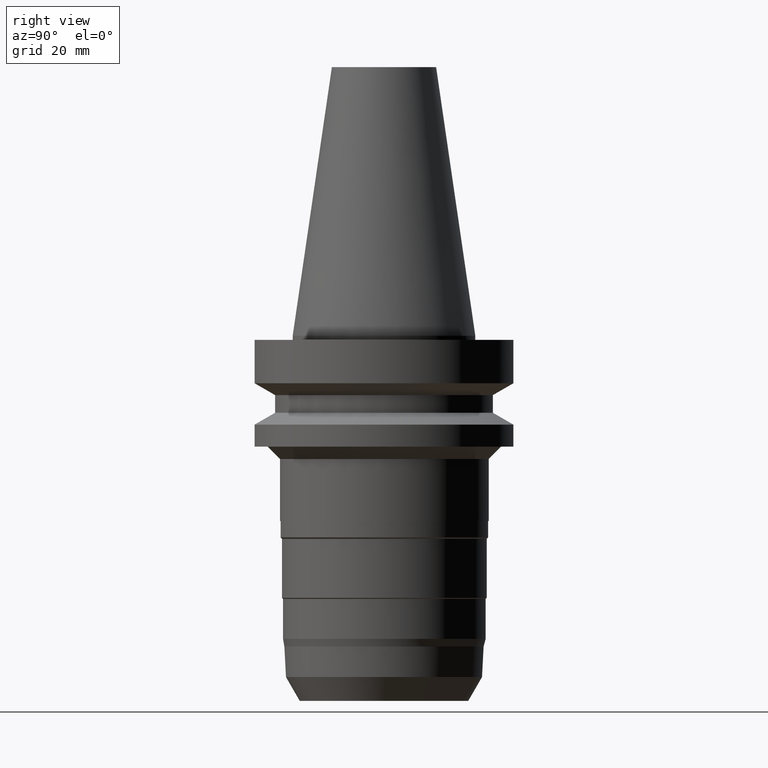
[diagram: clean part render]
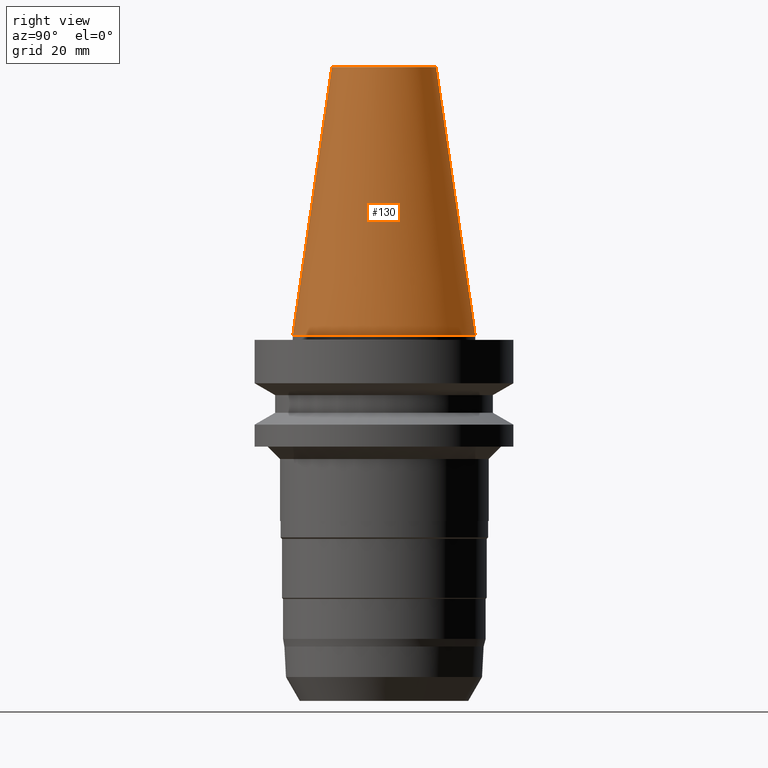
[diagram: same view with one face highlighted and labeled with its STEP entity id]
A machine part, right view. The second image highlights one B-rep face of the part: STEP entity #130.
In plain terms, the highlighted conical surface has half-angle 8.297 deg.
Its self-contained STEP definition (entity closure, byte-faithful):
#130=ADVANCED_FACE('Unnamed[1]',(#293,#294),#295,.T.);
#161=EDGE_CURVE('Unnamed[1]',#343,#343,#344,.T.);
#165=EDGE_CURVE('Unnamed[1]',#349,#349,#350,.T.);
#293=FACE_BOUND('',#498,.T.);
#294=FACE_BOUND('',#499,.T.);
#295=CONICAL_SURFACE('',#500,17.4562500000001,0.144812498238936);
#343=VERTEX_POINT('',#560);
#344=CIRCLE('',#561,12.6875000000002);
#349=VERTEX_POINT('',#568);
#350=CIRCLE('',#569,22.2250000000001);
#498=EDGE_LOOP('',(#703));
#499=EDGE_LOOP('',(#704));
#500=AXIS2_PLACEMENT_3D('',#705,#706,#707);
#560=CARTESIAN_POINT('',(-4.00459503321185E-015,12.6875000000002,65.4000000000001));
#561=AXIS2_PLACEMENT_3D('',#761,#762,#763);
#568=CARTESIAN_POINT('',(1.71319921032766E-029,22.2250000000001,-2.8153873565375E-013));
#569=AXIS2_PLACEMENT_3D('',#767,#768,#769);
#703=ORIENTED_EDGE('',*,*,#165,.F.);
#704=ORIENTED_EDGE('',*,*,#161,.T.);
#705=CARTESIAN_POINT('',(-2.00229751660592E-015,-4.00459503321183E-015,32.6999999999999));
#706=DIRECTION('',(6.12323399573677E-017,1.22464679914734E-016,-1.0));
#707=DIRECTION('',(-1.23259516440803E-032,1.0,1.22464679914734E-016));
#761=CARTESIAN_POINT('',(-4.00459503321185E-015,-8.0091900664237E-015,65.4000000000001));
#762=DIRECTION('',(6.12323399573677E-017,1.22464679914757E-016,-1.0));
#763=DIRECTION('',(-1.23259516440781E-032,1.0,1.22464679914757E-016));
#767=CARTESIAN_POINT('',(1.74032777401202E-029,3.48065554802404E-029,-2.8421709430404E-013));
#768=DIRECTION('',(6.12323399573677E-017,1.22464679914758E-016,-1.0));
#769=DIRECTION('',(-1.23259516440775E-032,1.0,1.22464679914758E-016));